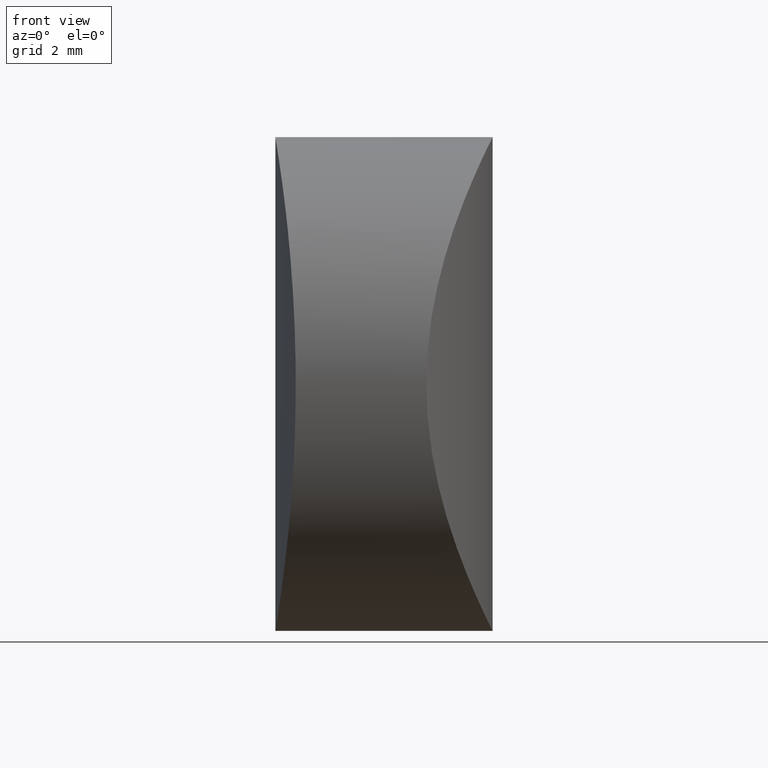
[diagram: clean part render]
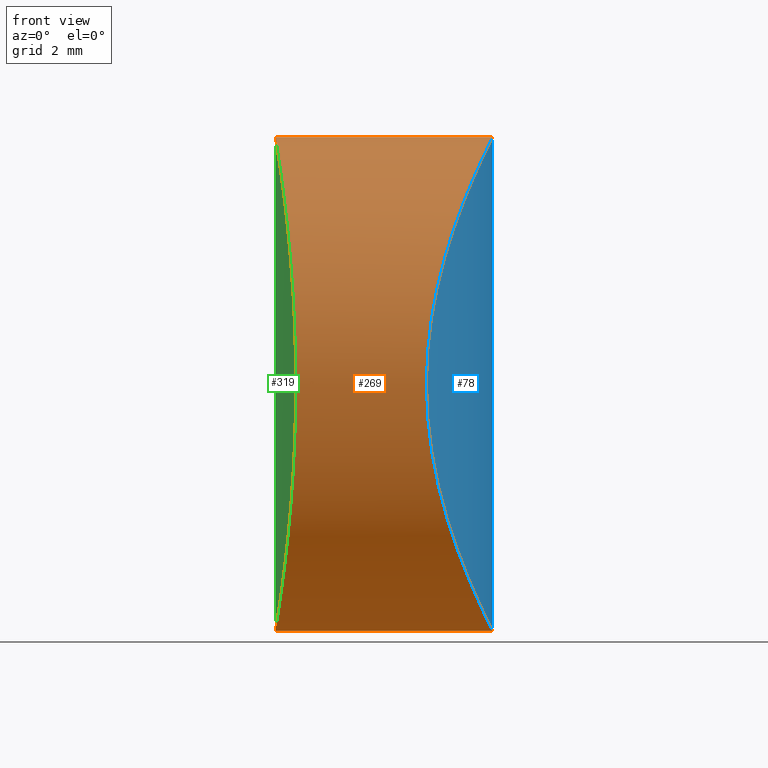
[diagram: same view with three faces highlighted in distinct colors, each labeled with its STEP entity id]
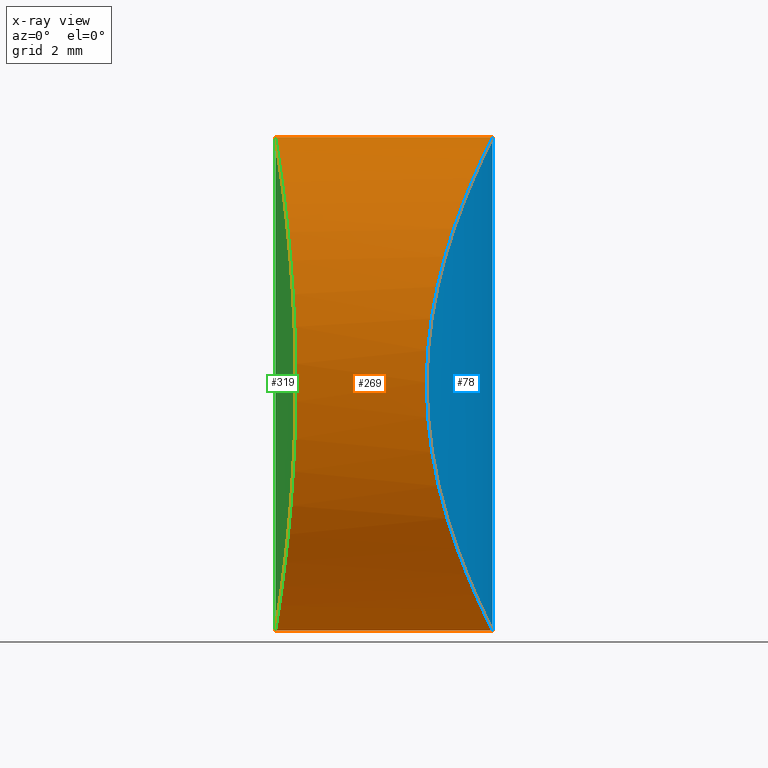
[diagram: x-ray of the same camera — body ghosted, the three highlighted faces saturated]
A machine part, front view with three faces highlighted in distinct colors.
The next image is the same camera in x-ray (body ghosted, the three faces saturated) — at least one of them is partly hidden behind the body in this view.
Their STEP definitions:

[orange] entity #269 — the highlighted cylindrical surface (partial cylindrical patch) has radius 6.25 mm, axis along (-1, 0, 0).
#3 = CARTESIAN_POINT ( 'NONE',  ( 0.4829545343584565886, -6.047693536380923440, 4.619780556301580354 ) ) ;
#5 = VECTOR ( 'NONE', #240, 1000.000000000000000 ) ;
#9 = CARTESIAN_POINT ( 'NONE',  ( 0.08747082248679743932, -2.587088586990906158, 11.94305091952789510 ) ) ;
#11 = CARTESIAN_POINT ( 'NONE',  ( 0.05192445867222306860, -2.023747739799685252, 12.17725649881626815 ) ) ;
#13 = ORIENTED_EDGE ( 'NONE', *, *, #143, .F. ) ;
#18 = CYLINDRICAL_SURFACE ( 'NONE', #256, 6.250000000000000888 ) ;
#19 = CARTESIAN_POINT ( 'NONE',  ( 4.008200150961246599, -5.922098602681358237, 4.210987643511414191 ) ) ;
#21 = EDGE_LOOP ( 'NONE', ( #236, #142, #146, #13 ) ) ;
#25 = VERTEX_POINT ( 'NONE', #86 ) ;
#33 = CARTESIAN_POINT ( 'NONE',  ( 5.299930854168795946, -2.234790816785142464, 0.4096533256334281559 ) ) ;
#34 = CARTESIAN_POINT ( 'NONE',  ( 0.3240684705012928379, -4.964090617211174283, 2.430463122044340007 ) ) ;
#35 = CARTESIAN_POINT ( 'NONE',  ( 0.03274016621498631457, -1.630060715058896381, 12.29773792413894107 ) ) ;
#41 = EDGE_CURVE ( 'NONE', #25, #308, #323, .T. ) ;
#43 = B_SPLINE_CURVE_WITH_KNOTS ( 'NONE', 3,
 ( #290, #55, #108, #84, #198, #174, #104, #197, #172, #217, #141, #171, #315, #85, #196, #268, #270, #139, #244, #293, #343, #341, #218, #56, #288, #52, #19, #316, #245, #83, #291, #342, #199, #61, #113, #298, #92, #33, #327, #64, #167, #214, #336, #44 ),
 .UNSPECIFIED., .F., .F.,
 ( 4, 2, 2, 2, 2, 2, 2, 2, 2, 2, 2, 2, 2, 2, 2, 2, 2, 2, 2, 2, 2, 4 ),
 ( 0.000000000000000000, 0.001242038898820559643, 0.002484077797641119287, 0.003726116696461679364, 0.004347136145871959186, 0.004968155595282238574, 0.005589175044692518829, 0.006210194494102798217, 0.007452233392923358728, 0.008073252842333639850, 0.008694272291743921841, 0.009936311190564482351, 0.01117835008938504460, 0.01242038898820560511, 0.01366242788702616735, 0.01490446678584672786, 0.01552548623525700812, 0.01614650568466729011, 0.01738854458348785062, 0.01800956403289813088, 0.01863058348230840766, 0.01987262238112896817 ),
 .UNSPECIFIED. ) ;
#44 = CARTESIAN_POINT ( 'NONE',  ( 5.499999999999998224, -5.306127916451729366E-15, -8.673617379884035472E-16 ) ) ;
#45 = CARTESIAN_POINT ( 'NONE',  ( 0.4145392146882821982, -5.605848304648271885, 3.478963668593923586 ) ) ;
#52 = CARTESIAN_POINT ( 'NONE',  ( 3.939965554773764200, -6.045220159673069915, 4.610632309698154074 ) ) ;
#55 = CARTESIAN_POINT ( 'NONE',  ( 5.499999999999998224, -0.4204308858565173335, 12.50000000000000000 ) ) ;
#56 = CARTESIAN_POINT ( 'NONE',  ( 3.823735072082887321, -6.250058703357287193, 5.830227390697671375 ) ) ;
#61 = CARTESIAN_POINT ( 'NONE',  ( 4.901988962150182871, -3.821992646196495258, 1.300702827171843490 ) ) ;
#62 = CARTESIAN_POINT ( 'NONE',  ( 12.50000000000000000, -5.306127916451729366E-15, -8.673617379884035472E-16 ) ) ;
#64 = CARTESIAN_POINT ( 'NONE',  ( 5.392645114789305083, -1.646284723063282218, 0.2171595785548926516 ) ) ;
#68 = CARTESIAN_POINT ( 'NONE',  ( 0.5161243098965490050, -6.249983048868624103, 5.836340486397866734 ) ) ;
#72 = CARTESIAN_POINT ( 'NONE',  ( 0.2905979831896557397, -4.705635259058774444, 2.116611540113448431 ) ) ;
#73 = CARTESIAN_POINT ( 'NONE',  ( 1.586780899593034504E-14, 0.000000000000000000, 12.50000000000000000 ) ) ;
#77 = CARTESIAN_POINT ( 'NONE',  ( 0.4898775194626582286, -6.090181329704441815, 7.669049544304755273 ) ) ;
#81 = DIRECTION ( 'NONE',  ( -1.000000000000000000, 0.000000000000000000, 0.000000000000000000 ) ) ;
#82 = B_SPLINE_CURVE_WITH_KNOTS ( 'NONE', 3,
 ( #145, #344, #177, #247, #322, #89, #202, #156, #188, #283, #302, #72, #34, #127, #303, #45, #186, #254, #3, #328, #68, #183, #121, #77, #191, #235, #281, #305, #304, #237, #98, #335, #329, #206, #260, #230, #9, #11, #35, #286, #100, #73 ),
 .UNSPECIFIED., .F., .F.,
 ( 4, 2, 2, 2, 2, 2, 2, 2, 2, 2, 2, 2, 2, 2, 2, 2, 2, 2, 2, 2, 4 ),
 ( 0.02934055191746777133, 0.03056308543687797849, 0.03117435219658308554, 0.03178561895628818912, 0.03300815247569839628, 0.03423068599510861038, 0.03545321951451882447, 0.03606448627422392805, 0.03667575303392903163, 0.03789828655333924573, 0.03912082007274945289, 0.04034335359215966699, 0.04095462035186477057, 0.04156588711156988108, 0.04278842063098010906, 0.04401095415039032316, 0.04523348766980055113, 0.04584475442950565471, 0.04645602118921075829, 0.04767855470862097933, 0.04890108822803120037 ),
 .UNSPECIFIED. ) ;
#83 = CARTESIAN_POINT ( 'NONE',  ( 4.474283165928862438, -4.963069113008143241, 2.429675420315867029 ) ) ;
#84 = CARTESIAN_POINT ( 'NONE',  ( 5.398363331412225463, -1.641239386668569278, 12.29474905259965567 ) ) ;
#85 = CARTESIAN_POINT ( 'NONE',  ( 4.476029905335582093, -4.954742388226770267, 10.06490883469363595 ) ) ;
#86 = CARTESIAN_POINT ( 'NONE',  ( 5.499999999999998224, -5.306127916451729366E-15, -8.673617379884035472E-16 ) ) ;
#89 = CARTESIAN_POINT ( 'NONE',  ( 0.05255592266075759939, -2.010138429213205846, 0.3285170698517857479 ) ) ;
#92 = CARTESIAN_POINT ( 'NONE',  ( 5.188630579431073642, -2.797752453290874630, 0.6463549098473140297 ) ) ;
#98 = CARTESIAN_POINT ( 'NONE',  ( 0.2909473912056529388, -4.708430838582900790, 10.38020545615920298 ) ) ;
#99 = VERTEX_POINT ( 'NONE', #251 ) ;
#100 = CARTESIAN_POINT ( 'NONE',  ( 1.586031547824911193E-14, -0.4134255790408547515, 12.50000000000000000 ) ) ;
#104 = CARTESIAN_POINT ( 'NONE',  ( 5.100579253738445118, -3.152975419826748116, 11.66168854718472758 ) ) ;
#105 = CARTESIAN_POINT ( 'NONE',  ( 12.50000000000000000, -6.071532165918824830E-15, 6.249999999999999112 ) ) ;
#108 = CARTESIAN_POINT ( 'NONE',  ( 5.478843911536270816, -0.8325528602893852437, 12.45802010048942066 ) ) ;
#110 = VERTEX_POINT ( 'NONE', #297 ) ;
#113 = CARTESIAN_POINT ( 'NONE',  ( 4.953513515990866978, -3.658322438160693135, 1.178476096167993425 ) ) ;
#121 = CARTESIAN_POINT ( 'NONE',  ( 0.5093144359310182168, -6.209415861584857588, 7.069570380984205649 ) ) ;
#127 = CARTESIAN_POINT ( 'NONE',  ( 0.3712204625318041296, -5.306834674025101783, 2.942108655494897640 ) ) ;
#131 = VECTOR ( 'NONE', #295, 1000.000000000000000 ) ;
#136 = FACE_OUTER_BOUND ( 'NONE', #21, .T. ) ;
#139 = CARTESIAN_POINT ( 'NONE',  ( 4.050235299533595068, -5.841329982157812850, 8.482153146949745093 ) ) ;
#141 = CARTESIAN_POINT ( 'NONE',  ( 4.744262744214226224, -4.281363646961209746, 10.80769014190529020 ) ) ;
#142 = ORIENTED_EDGE ( 'NONE', *, *, #313, .F. ) ;
#143 = EDGE_CURVE ( 'NONE', #308, #99, #82, .T. ) ;
#145 = CARTESIAN_POINT ( 'NONE',  ( 1.136498184832648444E-14, 1.068157224305689298E-31, -9.773172231851168020E-16 ) ) ;
#146 = ORIENTED_EDGE ( 'NONE', *, *, #223, .T. ) ;
#156 = CARTESIAN_POINT ( 'NONE',  ( 0.09910965749200047192, -2.772338036541226902, 0.6335787937697300309 ) ) ;
#167 = CARTESIAN_POINT ( 'NONE',  ( 5.417967346490923042, -1.443662297825266450, 0.1654839249916210675 ) ) ;
#171 = CARTESIAN_POINT ( 'NONE',  ( 4.637096022221840030, -4.564387682680785652, 10.52422264152600739 ) ) ;
#172 = CARTESIAN_POINT ( 'NONE',  ( 4.901961221584501871, -3.822074769951113282, 11.19922885566637483 ) ) ;
#174 = CARTESIAN_POINT ( 'NONE',  ( 5.189010716184532690, -2.796367035738801743, 11.85448339080179636 ) ) ;
#177 = CARTESIAN_POINT ( 'NONE',  ( 0.006721944021467518397, -0.8197799263718866802, 0.04061279894280638708 ) ) ;
#183 = CARTESIAN_POINT ( 'NONE',  ( 0.5161299459178037008, -6.250016940629667950, 6.663147124134831678 ) ) ;
#186 = CARTESIAN_POINT ( 'NONE',  ( 0.4276525441191665888, -5.693019792750925845, 3.662844268231694844 ) ) ;
#188 = CARTESIAN_POINT ( 'NONE',  ( 0.1273308529158439506, -3.130891926397191050, 0.8253851232295433826 ) ) ;
#191 = CARTESIAN_POINT ( 'NONE',  ( 0.4818622700615983190, -6.040641502459362933, 7.867179406013312004 ) ) ;
#196 = CARTESIAN_POINT ( 'NONE',  ( 4.422545947120804399, -5.076343834273187916, 9.901598556827257980 ) ) ;
#197 = CARTESIAN_POINT ( 'NONE',  ( 4.953423948601600735, -3.658625364287904524, 11.32131562577506756 ) ) ;
#198 = CARTESIAN_POINT ( 'NONE',  ( 5.337968765651573300, -2.041851301300707355, 12.17121152634462256 ) ) ;
#199 = CARTESIAN_POINT ( 'NONE',  ( 4.797469905077365482, -4.133108092026791525, 1.557390087364225018 ) ) ;
#202 = CARTESIAN_POINT ( 'NONE',  ( 0.06339900910544064849, -2.205190765562244248, 0.3983745825505354277 ) ) ;
#206 = CARTESIAN_POINT ( 'NONE',  ( 0.1434824269873183344, -3.307886042671819293, 11.55683867362974482 ) ) ;
#214 = CARTESIAN_POINT ( 'NONE',  ( 5.478819348541660084, -0.8339676614958809742, 0.04202249292340250880 ) ) ;
#217 = CARTESIAN_POINT ( 'NONE',  ( 4.797504594718321691, -4.133005283357483073, 10.94269529594631685 ) ) ;
#218 = CARTESIAN_POINT ( 'NONE',  ( 3.823802999769077005, -6.249941174666603594, 6.671518863326060256 ) ) ;
#223 = EDGE_CURVE ( 'NONE', #110, #99, #271, .T. ) ;
#230 = CARTESIAN_POINT ( 'NONE',  ( 0.1004707187619851283, -2.770985683892317919, 11.85587395494219898 ) ) ;
#235 = CARTESIAN_POINT ( 'NONE',  ( 0.4629301586406475155, -5.921537788994333695, 8.259977414296034937 ) ) ;
#236 = ORIENTED_EDGE ( 'NONE', *, *, #41, .F. ) ;
#237 = CARTESIAN_POINT ( 'NONE',  ( 0.3250769054402188885, -4.971666286081013020, 10.05939303532884921 ) ) ;
#240 = DIRECTION ( 'NONE',  ( -1.000000000000000000, 0.000000000000000000, 0.000000000000000000 ) ) ;
#244 = CARTESIAN_POINT ( 'NONE',  ( 4.012820659232075649, -5.911247298030509079, 8.290173178237724372 ) ) ;
#245 = CARTESIAN_POINT ( 'NONE',  ( 4.267814276648419280, -5.415114148527844229, 3.103021501019150641 ) ) ;
#247 = CARTESIAN_POINT ( 'NONE',  ( 0.02591766193876681584, -1.419232947397066846, 0.1598616619894049629 ) ) ;
#251 = CARTESIAN_POINT ( 'NONE',  ( 1.586780899593034504E-14, 0.000000000000000000, 12.50000000000000000 ) ) ;
#254 = CARTESIAN_POINT ( 'NONE',  ( 0.4635404774375572745, -5.927213797019767583, 4.226134103079007609 ) ) ;
#256 = AXIS2_PLACEMENT_3D ( 'NONE', #105, #81, #339 ) ;
#260 = CARTESIAN_POINT ( 'NONE',  ( 0.1284342911476158700, -3.130939934637391620, 11.66307672075024549 ) ) ;
#268 = CARTESIAN_POINT ( 'NONE',  ( 4.268015616409087443, -5.414671851212665032, 9.397631445965433983 ) ) ;
#269 = ADVANCED_FACE ( 'NONE', ( #136 ), #18, .T. ) ;
#270 = CARTESIAN_POINT ( 'NONE',  ( 4.172729123313529520, -5.605792025897776476, 9.043236525959510885 ) ) ;
#271 = LINE ( 'NONE', #317, #5 ) ;
#281 = CARTESIAN_POINT ( 'NONE',  ( 0.4519710260602098906, -5.851683952539731060, 8.455035812689571273 ) ) ;
#283 = CARTESIAN_POINT ( 'NONE',  ( 0.1893961728959121238, -3.809488662938500081, 1.278408007187083140 ) ) ;
#286 = CARTESIAN_POINT ( 'NONE',  ( 0.006726049494030160100, -0.8221003098062018566, 12.45937863352390451 ) ) ;
#288 = CARTESIAN_POINT ( 'NONE',  ( 3.848281652511907236, -6.208098310133504327, 5.418297784876791034 ) ) ;
#290 = CARTESIAN_POINT ( 'NONE',  ( 5.499999999999998224, -6.071532165918824830E-15, 12.50000000000000000 ) ) ;
#291 = CARTESIAN_POINT ( 'NONE',  ( 4.583465705276889679, -4.706014185487407353, 2.117642485836710442 ) ) ;
#292 = CARTESIAN_POINT ( 'NONE',  ( 1.136498184832648444E-14, 1.068157224305689298E-31, -9.773172231851168020E-16 ) ) ;
#293 = CARTESIAN_POINT ( 'NONE',  ( 3.946516896790673634, -6.033034497158894283, 7.895492622822828821 ) ) ;
#295 = DIRECTION ( 'NONE',  ( -1.000000000000000000, 0.000000000000000000, 0.000000000000000000 ) ) ;
#297 = CARTESIAN_POINT ( 'NONE',  ( 5.499999999999998224, -6.071532165918824830E-15, 12.50000000000000000 ) ) ;
#298 = CARTESIAN_POINT ( 'NONE',  ( 5.100480944358887214, -3.153303538659017580, 0.8385410592116590012 ) ) ;
#302 = CARTESIAN_POINT ( 'NONE',  ( 0.2234293246524687027, -4.130287875618686932, 1.541643023714352356 ) ) ;
#303 = CARTESIAN_POINT ( 'NONE',  ( 0.3863655932238942436, -5.413064718625544280, 3.119040415995174342 ) ) ;
#304 = CARTESIAN_POINT ( 'NONE',  ( 0.3874684614509883440, -5.424688508477384374, 9.380765967580448006 ) ) ;
#305 = CARTESIAN_POINT ( 'NONE',  ( 0.4159157410758312912, -5.616489684704372820, 9.022200512990993460 ) ) ;
#308 = VERTEX_POINT ( 'NONE', #292 ) ;
#313 = EDGE_CURVE ( 'NONE', #110, #25, #43, .T. ) ;
#315 = CARTESIAN_POINT ( 'NONE',  ( 4.583167940201298585, -4.699052856867841577, 10.37576099635896121 ) ) ;
#316 = CARTESIAN_POINT ( 'NONE',  ( 4.172178724081542001, -5.606908644890324034, 3.458692296136483435 ) ) ;
#317 = CARTESIAN_POINT ( 'NONE',  ( 12.50000000000000000, -6.071532165918824830E-15, 12.50000000000000000 ) ) ;
#322 = CARTESIAN_POINT ( 'NONE',  ( 0.03383628064533664853, -1.617354943771920794, 0.2094056929393993405 ) ) ;
#323 = LINE ( 'NONE', #62, #131 ) ;
#327 = CARTESIAN_POINT ( 'NONE',  ( 5.333543247772078999, -2.042164353938784149, 0.3394178212704527797 ) ) ;
#328 = CARTESIAN_POINT ( 'NONE',  ( 0.5093005127096844609, -6.209349300076315359, 5.427689952488861103 ) ) ;
#329 = CARTESIAN_POINT ( 'NONE',  ( 0.1903945330906904598, -3.819575723843630755, 11.21406369890288701 ) ) ;
#335 = CARTESIAN_POINT ( 'NONE',  ( 0.2237751282031887057, -4.133445245479578034, 10.95558694260641452 ) ) ;
#336 = CARTESIAN_POINT ( 'NONE',  ( 5.499999999999999112, -0.4202502510817995862, -9.228894534195187478E-16 ) ) ;
#339 = DIRECTION ( 'NONE',  ( 0.000000000000000000, 0.000000000000000000, 1.000000000000000000 ) ) ;
#341 = CARTESIAN_POINT ( 'NONE',  ( 3.848424530652488684, -6.207861446666275818, 7.084501827366790572 ) ) ;
#342 = CARTESIAN_POINT ( 'NONE',  ( 4.744212298873339506, -4.281501630418621751, 1.692439707097627366 ) ) ;
#343 = CARTESIAN_POINT ( 'NONE',  ( 3.917788844864511066, -6.084608863991484817, 7.693223555952894976 ) ) ;
#344 = CARTESIAN_POINT ( 'NONE',  ( 1.136728803127111734E-14, -0.4134111996259767219, -1.372193374551966549E-15 ) ) ;

[blue] entity #78 — the highlighted cylindrical surface (partial cylindrical patch) has radius 12.49 mm, axis along (-0, -0, -1).
#4 = CARTESIAN_POINT ( 'NONE',  ( 4.172729123313466459, 5.605792025897764042, 3.456763474040483342 ) ) ;
#7 = CARTESIAN_POINT ( 'NONE',  ( 3.848281652511831297, 6.208098310133491005, 7.081702215123205413 ) ) ;
#16 = CARTESIAN_POINT ( 'NONE',  ( 5.333543247772056795, 2.042164353938774823, 12.16058217872954650 ) ) ;
#19 = CARTESIAN_POINT ( 'NONE',  ( 4.008200150961246599, -5.922098602681358237, 4.210987643511414191 ) ) ;
#20 = CARTESIAN_POINT ( 'NONE',  ( 5.499999999999998224, -6.071532165918824830E-15, 12.50000000000000000 ) ) ;
#25 = VERTEX_POINT ( 'NONE', #86 ) ;
#30 = FACE_OUTER_BOUND ( 'NONE', #57, .T. ) ;
#31 = DIRECTION ( 'NONE',  ( -1.000000000000000000, 0.000000000000000000, 0.000000000000000000 ) ) ;
#33 = CARTESIAN_POINT ( 'NONE',  ( 5.299930854168795946, -2.234790816785142464, 0.4096533256334281559 ) ) ;
#38 = CARTESIAN_POINT ( 'NONE',  ( 4.012820659232004594, 5.911247298030493980, 4.209826821762267635 ) ) ;
#42 = CARTESIAN_POINT ( 'NONE',  ( 4.744212298873294209, 4.281501630418608428, 10.80756029290237308 ) ) ;
#43 = B_SPLINE_CURVE_WITH_KNOTS ( 'NONE', 3,
 ( #290, #55, #108, #84, #198, #174, #104, #197, #172, #217, #141, #171, #315, #85, #196, #268, #270, #139, #244, #293, #343, #341, #218, #56, #288, #52, #19, #316, #245, #83, #291, #342, #199, #61, #113, #298, #92, #33, #327, #64, #167, #214, #336, #44 ),
 .UNSPECIFIED., .F., .F.,
 ( 4, 2, 2, 2, 2, 2, 2, 2, 2, 2, 2, 2, 2, 2, 2, 2, 2, 2, 2, 2, 2, 4 ),
 ( 0.000000000000000000, 0.001242038898820559643, 0.002484077797641119287, 0.003726116696461679364, 0.004347136145871959186, 0.004968155595282238574, 0.005589175044692518829, 0.006210194494102798217, 0.007452233392923358728, 0.008073252842333639850, 0.008694272291743921841, 0.009936311190564482351, 0.01117835008938504460, 0.01242038898820560511, 0.01366242788702616735, 0.01490446678584672786, 0.01552548623525700812, 0.01614650568466729011, 0.01738854458348785062, 0.01800956403289813088, 0.01863058348230840766, 0.01987262238112896817 ),
 .UNSPECIFIED. ) ;
#44 = CARTESIAN_POINT ( 'NONE',  ( 5.499999999999998224, -5.306127916451729366E-15, -8.673617379884035472E-16 ) ) ;
#46 = CARTESIAN_POINT ( 'NONE',  ( 3.823802999769002398, 6.249941174666591159, 5.828481136673940632 ) ) ;
#48 = CARTESIAN_POINT ( 'NONE',  ( 5.499999999999997335, 0.4204308858565055651, -8.156927282058909307E-16 ) ) ;
#52 = CARTESIAN_POINT ( 'NONE',  ( 3.939965554773764200, -6.045220159673069915, 4.610632309698154074 ) ) ;
#54 = CARTESIAN_POINT ( 'NONE',  ( 5.188630579431041667, 2.797752453290867081, 11.85364509015268375 ) ) ;
#55 = CARTESIAN_POINT ( 'NONE',  ( 5.499999999999998224, -0.4204308858565173335, 12.50000000000000000 ) ) ;
#56 = CARTESIAN_POINT ( 'NONE',  ( 3.823735072082887321, -6.250058703357287193, 5.830227390697671375 ) ) ;
#57 = EDGE_LOOP ( 'NONE', ( #234, #332 ) ) ;
#61 = CARTESIAN_POINT ( 'NONE',  ( 4.901988962150182871, -3.821992646196495258, 1.300702827171843490 ) ) ;
#64 = CARTESIAN_POINT ( 'NONE',  ( 5.392645114789305083, -1.646284723063282218, 0.2171595785548926516 ) ) ;
#66 = CARTESIAN_POINT ( 'NONE',  ( 5.189010716184502492, 2.796367035738788864, 0.6455166091982036392 ) ) ;
#69 = CARTESIAN_POINT ( 'NONE',  ( 5.398363331412208588, 1.641239386668556843, 0.2052509474003404166 ) ) ;
#75 = CARTESIAN_POINT ( 'NONE',  ( 4.422545947120749332, 5.076343834273174593, 2.598401443172736247 ) ) ;
#78 = ADVANCED_FACE ( 'NONE', ( #30 ), #149, .T. ) ;
#79 = CARTESIAN_POINT ( 'NONE',  ( 5.299930854168772854, 2.234790816785134027, 12.09034667436657351 ) ) ;
#83 = CARTESIAN_POINT ( 'NONE',  ( 4.474283165928862438, -4.963069113008143241, 2.429675420315867029 ) ) ;
#84 = CARTESIAN_POINT ( 'NONE',  ( 5.398363331412225463, -1.641239386668569278, 12.29474905259965567 ) ) ;
#85 = CARTESIAN_POINT ( 'NONE',  ( 4.476029905335582093, -4.954742388226770267, 10.06490883469363595 ) ) ;
#86 = CARTESIAN_POINT ( 'NONE',  ( 5.499999999999998224, -5.306127916451729366E-15, -8.673617379884035472E-16 ) ) ;
#92 = CARTESIAN_POINT ( 'NONE',  ( 5.188630579431073642, -2.797752453290874630, 0.6463549098473140297 ) ) ;
#96 = CARTESIAN_POINT ( 'NONE',  ( 4.172178724081478052, 5.606908644890310711, 9.041307703863516565 ) ) ;
#104 = CARTESIAN_POINT ( 'NONE',  ( 5.100579253738445118, -3.152975419826748116, 11.66168854718472758 ) ) ;
#108 = CARTESIAN_POINT ( 'NONE',  ( 5.478843911536270816, -0.8325528602893852437, 12.45802010048942066 ) ) ;
#110 = VERTEX_POINT ( 'NONE', #297 ) ;
#113 = CARTESIAN_POINT ( 'NONE',  ( 4.953513515990866978, -3.658322438160693135, 1.178476096167993425 ) ) ;
#124 = CARTESIAN_POINT ( 'NONE',  ( 5.337968765651553760, 2.041851301300694477, 0.3287884736553775000 ) ) ;
#128 = CARTESIAN_POINT ( 'NONE',  ( 4.476029905335527026, 4.954742388226756056, 2.435091165306355165 ) ) ;
#130 = CARTESIAN_POINT ( 'NONE',  ( 4.268015616409025270, 5.414671851212649045, 3.102368554034560688 ) ) ;
#134 = CARTESIAN_POINT ( 'NONE',  ( 5.417967346490907943, 1.443662297825257790, 12.33451607500837888 ) ) ;
#139 = CARTESIAN_POINT ( 'NONE',  ( 4.050235299533595068, -5.841329982157812850, 8.482153146949745093 ) ) ;
#141 = CARTESIAN_POINT ( 'NONE',  ( 4.744262744214226224, -4.281363646961209746, 10.80769014190529020 ) ) ;
#149 = CYLINDRICAL_SURFACE ( 'NONE', #310, 12.49000000000000199 ) ;
#157 = CARTESIAN_POINT ( 'NONE',  ( 5.100579253738413144, 3.152975419826734793, 0.8383114528152735279 ) ) ;
#160 = CARTESIAN_POINT ( 'NONE',  ( 3.946516896790600804, 6.033034497158880072, 4.604507377177165850 ) ) ;
#161 = CARTESIAN_POINT ( 'NONE',  ( 4.797469905077320185, 4.133108092026782643, 10.94260991263577232 ) ) ;
#162 = CARTESIAN_POINT ( 'NONE',  ( 4.267814276648357996, 5.415114148527830906, 9.396978498980850247 ) ) ;
#165 = CARTESIAN_POINT ( 'NONE',  ( 5.392645114789288208, 1.646284723063273114, 12.28284042144510835 ) ) ;
#167 = CARTESIAN_POINT ( 'NONE',  ( 5.417967346490923042, -1.443662297825266450, 0.1654839249916210675 ) ) ;
#169 = CARTESIAN_POINT ( 'NONE',  ( 5.478819348541651202, 0.8339676614958736467, 12.45797750707659546 ) ) ;
#171 = CARTESIAN_POINT ( 'NONE',  ( 4.637096022221840030, -4.564387682680785652, 10.52422264152600739 ) ) ;
#172 = CARTESIAN_POINT ( 'NONE',  ( 4.901961221584501871, -3.822074769951113282, 11.19922885566637483 ) ) ;
#174 = CARTESIAN_POINT ( 'NONE',  ( 5.189010716184532690, -2.796367035738801743, 11.85448339080179636 ) ) ;
#184 = CARTESIAN_POINT ( 'NONE',  ( 4.050235299533525790, 5.841329982157798639, 4.017846853050253131 ) ) ;
#187 = CARTESIAN_POINT ( 'NONE',  ( 4.474283165928804706, 4.963069113008130806, 10.07032457968412942 ) ) ;
#189 = CARTESIAN_POINT ( 'NONE',  ( 3.917788844864439124, 6.084608863991471495, 4.806776444047099695 ) ) ;
#196 = CARTESIAN_POINT ( 'NONE',  ( 4.422545947120804399, -5.076343834273187916, 9.901598556827257980 ) ) ;
#197 = CARTESIAN_POINT ( 'NONE',  ( 4.953423948601600735, -3.658625364287904524, 11.32131562577506756 ) ) ;
#198 = CARTESIAN_POINT ( 'NONE',  ( 5.337968765651573300, -2.041851301300707355, 12.17121152634462256 ) ) ;
#199 = CARTESIAN_POINT ( 'NONE',  ( 4.797469905077365482, -4.133108092026791525, 1.557390087364225018 ) ) ;
#201 = DIRECTION ( 'NONE',  ( -0.000000000000000000, -0.000000000000000000, -1.000000000000000000 ) ) ;
#208 = CARTESIAN_POINT ( 'NONE',  ( 4.583167940201247070, 4.699052856867828254, 2.124239003641036572 ) ) ;
#209 = CARTESIAN_POINT ( 'NONE',  ( 4.637096022221792069, 4.564387682680769665, 1.975777358473987277 ) ) ;
#211 = CARTESIAN_POINT ( 'NONE',  ( 4.901961221584459238, 3.822074769951095963, 1.300771144333626506 ) ) ;
#213 = EDGE_CURVE ( 'NONE', #25, #110, #224, .T. ) ;
#214 = CARTESIAN_POINT ( 'NONE',  ( 5.478819348541660084, -0.8339676614958809742, 0.04202249292340250880 ) ) ;
#217 = CARTESIAN_POINT ( 'NONE',  ( 4.797504594718321691, -4.133005283357483073, 10.94269529594631685 ) ) ;
#218 = CARTESIAN_POINT ( 'NONE',  ( 3.823802999769077005, -6.249941174666603594, 6.671518863326060256 ) ) ;
#224 = B_SPLINE_CURVE_WITH_KNOTS ( 'NONE', 3,
 ( #307, #48, #280, #69, #124, #66, #157, #333, #211, #255, #309, #209, #208, #128, #75, #130, #4, #184, #38, #160, #189, #284, #46, #258, #7, #232, #330, #96, #162, #187, #282, #42, #161, #261, #312, #289, #54, #79, #16, #165, #134, #169, #243, #20 ),
 .UNSPECIFIED., .F., .F.,
 ( 4, 2, 2, 2, 2, 2, 2, 2, 2, 2, 2, 2, 2, 2, 2, 2, 2, 2, 2, 2, 2, 4 ),
 ( -0.01988116416464391287, -0.01863859140435366463, -0.01739601864406341292, -0.01615344588377316468, -0.01553215950362804056, -0.01491087312348291644, -0.01428958674333779405, -0.01366830036319266993, -0.01242572760290242342, -0.01180444122275729930, -0.01118315484261217692, -0.009940582082321932147, -0.008698009322031687376, -0.007455436561741446075, -0.006212863801451201304, -0.004970291041160958267, -0.004349004661015837617, -0.003727718280870716966, -0.002485145520580479134, -0.001863859140435356748, -0.001242572760290237832, 0.000000000000000000 ),
 .UNSPECIFIED. ) ;
#232 = CARTESIAN_POINT ( 'NONE',  ( 3.939965554773691370, 6.045220159673055704, 7.889367690301843261 ) ) ;
#234 = ORIENTED_EDGE ( 'NONE', *, *, #313, .T. ) ;
#243 = CARTESIAN_POINT ( 'NONE',  ( 5.499999999999996447, 0.4206115982728710345, 12.50000000000000000 ) ) ;
#244 = CARTESIAN_POINT ( 'NONE',  ( 4.012820659232075649, -5.911247298030509079, 8.290173178237724372 ) ) ;
#245 = CARTESIAN_POINT ( 'NONE',  ( 4.267814276648419280, -5.415114148527844229, 3.103021501019150641 ) ) ;
#255 = CARTESIAN_POINT ( 'NONE',  ( 4.797504594718278170, 4.133005283357464421, 1.557304704053683597 ) ) ;
#258 = CARTESIAN_POINT ( 'NONE',  ( 3.823735072082811381, 6.250058703357273870, 6.669772609302327737 ) ) ;
#261 = CARTESIAN_POINT ( 'NONE',  ( 4.901988962150140239, 3.821992646196489041, 11.19929717282815851 ) ) ;
#268 = CARTESIAN_POINT ( 'NONE',  ( 4.268015616409087443, -5.414671851212665032, 9.397631445965433983 ) ) ;
#270 = CARTESIAN_POINT ( 'NONE',  ( 4.172729123313529520, -5.605792025897776476, 9.043236525959510885 ) ) ;
#280 = CARTESIAN_POINT ( 'NONE',  ( 5.478843911536261935, 0.8325528602893739194, 0.04197989951058110625 ) ) ;
#282 = CARTESIAN_POINT ( 'NONE',  ( 4.583465705276839053, 4.706014185487394030, 10.38235751416328867 ) ) ;
#284 = CARTESIAN_POINT ( 'NONE',  ( 3.848424530652415410, 6.207861446666264271, 5.415498172633206764 ) ) ;
#288 = CARTESIAN_POINT ( 'NONE',  ( 3.848281652511907236, -6.208098310133504327, 5.418297784876791034 ) ) ;
#289 = CARTESIAN_POINT ( 'NONE',  ( 5.100480944358852575, 3.153303538659008698, 11.66145894078833756 ) ) ;
#290 = CARTESIAN_POINT ( 'NONE',  ( 5.499999999999998224, -6.071532165918824830E-15, 12.50000000000000000 ) ) ;
#291 = CARTESIAN_POINT ( 'NONE',  ( 4.583465705276889679, -4.706014185487407353, 2.117642485836710442 ) ) ;
#293 = CARTESIAN_POINT ( 'NONE',  ( 3.946516896790673634, -6.033034497158894283, 7.895492622822828821 ) ) ;
#297 = CARTESIAN_POINT ( 'NONE',  ( 5.499999999999998224, -6.071532165918824830E-15, 12.50000000000000000 ) ) ;
#298 = CARTESIAN_POINT ( 'NONE',  ( 5.100480944358887214, -3.153303538659017580, 0.8385410592116590012 ) ) ;
#307 = CARTESIAN_POINT ( 'NONE',  ( 5.499999999999998224, -5.306127916451729366E-15, -8.673617379884035472E-16 ) ) ;
#309 = CARTESIAN_POINT ( 'NONE',  ( 4.744262744214180039, 4.281363646961192870, 1.692309858094708463 ) ) ;
#310 = AXIS2_PLACEMENT_3D ( 'NONE', #324, #201, #31 ) ;
#312 = CARTESIAN_POINT ( 'NONE',  ( 4.953513515990831451, 3.658322438160683365, 11.32152390383200569 ) ) ;
#313 = EDGE_CURVE ( 'NONE', #110, #25, #43, .T. ) ;
#315 = CARTESIAN_POINT ( 'NONE',  ( 4.583167940201298585, -4.699052856867841577, 10.37576099635896121 ) ) ;
#316 = CARTESIAN_POINT ( 'NONE',  ( 4.172178724081542001, -5.606908644890324034, 3.458692296136483435 ) ) ;
#324 = CARTESIAN_POINT ( 'NONE',  ( -6.990000000000002878, -7.069043529374072971E-14, 12.50000000000000000 ) ) ;
#327 = CARTESIAN_POINT ( 'NONE',  ( 5.333543247772078999, -2.042164353938784149, 0.3394178212704527797 ) ) ;
#330 = CARTESIAN_POINT ( 'NONE',  ( 4.008200150961177322, 5.922098602681347579, 8.289012356488584032 ) ) ;
#332 = ORIENTED_EDGE ( 'NONE', *, *, #213, .T. ) ;
#333 = CARTESIAN_POINT ( 'NONE',  ( 4.953423948601561655, 3.658625364287889870, 1.178684374224931775 ) ) ;
#336 = CARTESIAN_POINT ( 'NONE',  ( 5.499999999999999112, -0.4202502510817995862, -9.228894534195187478E-16 ) ) ;
#341 = CARTESIAN_POINT ( 'NONE',  ( 3.848424530652488684, -6.207861446666275818, 7.084501827366790572 ) ) ;
#342 = CARTESIAN_POINT ( 'NONE',  ( 4.744212298873339506, -4.281501630418621751, 1.692439707097627366 ) ) ;
#343 = CARTESIAN_POINT ( 'NONE',  ( 3.917788844864511066, -6.084608863991484817, 7.693223555952894976 ) ) ;

[green] entity #319 — the highlighted cylindrical surface (partial cylindrical patch) has radius 38.1 mm, axis along (-0, -0, -1).
#3 = CARTESIAN_POINT ( 'NONE',  ( 0.4829545343584565886, -6.047693536380923440, 4.619780556301580354 ) ) ;
#9 = CARTESIAN_POINT ( 'NONE',  ( 0.08747082248679743932, -2.587088586990906158, 11.94305091952789510 ) ) ;
#11 = CARTESIAN_POINT ( 'NONE',  ( 0.05192445867222306860, -2.023747739799685252, 12.17725649881626815 ) ) ;
#29 = EDGE_LOOP ( 'NONE', ( #272, #221 ) ) ;
#34 = CARTESIAN_POINT ( 'NONE',  ( 0.3240684705012928379, -4.964090617211174283, 2.430463122044340007 ) ) ;
#35 = CARTESIAN_POINT ( 'NONE',  ( 0.03274016621498631457, -1.630060715058896381, 12.29773792413894107 ) ) ;
#45 = CARTESIAN_POINT ( 'NONE',  ( 0.4145392146882821982, -5.605848304648271885, 3.478963668593923586 ) ) ;
#47 = CYLINDRICAL_SURFACE ( 'NONE', #320, 38.09999999999998721 ) ;
#68 = CARTESIAN_POINT ( 'NONE',  ( 0.5161243098965490050, -6.249983048868624103, 5.836340486397866734 ) ) ;
#71 = FACE_OUTER_BOUND ( 'NONE', #29, .T. ) ;
#72 = CARTESIAN_POINT ( 'NONE',  ( 0.2905979831896557397, -4.705635259058774444, 2.116611540113448431 ) ) ;
#73 = CARTESIAN_POINT ( 'NONE',  ( 1.586780899593034504E-14, 0.000000000000000000, 12.50000000000000000 ) ) ;
#76 = DIRECTION ( 'NONE',  ( -0.000000000000000000, -0.000000000000000000, -1.000000000000000000 ) ) ;
#77 = CARTESIAN_POINT ( 'NONE',  ( 0.4898775194626582286, -6.090181329704441815, 7.669049544304755273 ) ) ;
#82 = B_SPLINE_CURVE_WITH_KNOTS ( 'NONE', 3,
 ( #145, #344, #177, #247, #322, #89, #202, #156, #188, #283, #302, #72, #34, #127, #303, #45, #186, #254, #3, #328, #68, #183, #121, #77, #191, #235, #281, #305, #304, #237, #98, #335, #329, #206, #260, #230, #9, #11, #35, #286, #100, #73 ),
 .UNSPECIFIED., .F., .F.,
 ( 4, 2, 2, 2, 2, 2, 2, 2, 2, 2, 2, 2, 2, 2, 2, 2, 2, 2, 2, 2, 4 ),
 ( 0.02934055191746777133, 0.03056308543687797849, 0.03117435219658308554, 0.03178561895628818912, 0.03300815247569839628, 0.03423068599510861038, 0.03545321951451882447, 0.03606448627422392805, 0.03667575303392903163, 0.03789828655333924573, 0.03912082007274945289, 0.04034335359215966699, 0.04095462035186477057, 0.04156588711156988108, 0.04278842063098010906, 0.04401095415039032316, 0.04523348766980055113, 0.04584475442950565471, 0.04645602118921075829, 0.04767855470862097933, 0.04890108822803120037 ),
 .UNSPECIFIED. ) ;
#89 = CARTESIAN_POINT ( 'NONE',  ( 0.05255592266075759939, -2.010138429213205846, 0.3285170698517857479 ) ) ;
#98 = CARTESIAN_POINT ( 'NONE',  ( 0.2909473912056529388, -4.708430838582900790, 10.38020545615920298 ) ) ;
#99 = VERTEX_POINT ( 'NONE', #251 ) ;
#100 = CARTESIAN_POINT ( 'NONE',  ( 1.586031547824911193E-14, -0.4134255790408547515, 12.50000000000000000 ) ) ;
#121 = CARTESIAN_POINT ( 'NONE',  ( 0.5093144359310182168, -6.209415861584857588, 7.069570380984205649 ) ) ;
#127 = CARTESIAN_POINT ( 'NONE',  ( 0.3712204625318041296, -5.306834674025101783, 2.942108655494897640 ) ) ;
#143 = EDGE_CURVE ( 'NONE', #308, #99, #82, .T. ) ;
#145 = CARTESIAN_POINT ( 'NONE',  ( 1.136498184832648444E-14, 1.068157224305689298E-31, -9.773172231851168020E-16 ) ) ;
#156 = CARTESIAN_POINT ( 'NONE',  ( 0.09910965749200047192, -2.772338036541226902, 0.6335787937697300309 ) ) ;
#176 = VECTOR ( 'NONE', #337, 1000.000000000000000 ) ;
#177 = CARTESIAN_POINT ( 'NONE',  ( 0.006721944021467518397, -0.8197799263718866802, 0.04061279894280638708 ) ) ;
#183 = CARTESIAN_POINT ( 'NONE',  ( 0.5161299459178037008, -6.250016940629667950, 6.663147124134831678 ) ) ;
#186 = CARTESIAN_POINT ( 'NONE',  ( 0.4276525441191665888, -5.693019792750925845, 3.662844268231694844 ) ) ;
#188 = CARTESIAN_POINT ( 'NONE',  ( 0.1273308529158439506, -3.130891926397191050, 0.8253851232295433826 ) ) ;
#191 = CARTESIAN_POINT ( 'NONE',  ( 0.4818622700615983190, -6.040641502459362933, 7.867179406013312004 ) ) ;
#194 = CARTESIAN_POINT ( 'NONE',  ( 38.10000000000000142, 0.000000000000000000, 12.50000000000000000 ) ) ;
#202 = CARTESIAN_POINT ( 'NONE',  ( 0.06339900910544064849, -2.205190765562244248, 0.3983745825505354277 ) ) ;
#206 = CARTESIAN_POINT ( 'NONE',  ( 0.1434824269873183344, -3.307886042671819293, 11.55683867362974482 ) ) ;
#221 = ORIENTED_EDGE ( 'NONE', *, *, #294, .T. ) ;
#230 = CARTESIAN_POINT ( 'NONE',  ( 0.1004707187619851283, -2.770985683892317919, 11.85587395494219898 ) ) ;
#235 = CARTESIAN_POINT ( 'NONE',  ( 0.4629301586406475155, -5.921537788994333695, 8.259977414296034937 ) ) ;
#237 = CARTESIAN_POINT ( 'NONE',  ( 0.3250769054402188885, -4.971666286081013020, 10.05939303532884921 ) ) ;
#247 = CARTESIAN_POINT ( 'NONE',  ( 0.02591766193876681584, -1.419232947397066846, 0.1598616619894049629 ) ) ;
#251 = CARTESIAN_POINT ( 'NONE',  ( 1.586780899593034504E-14, 0.000000000000000000, 12.50000000000000000 ) ) ;
#254 = CARTESIAN_POINT ( 'NONE',  ( 0.4635404774375572745, -5.927213797019767583, 4.226134103079007609 ) ) ;
#260 = CARTESIAN_POINT ( 'NONE',  ( 0.1284342911476158700, -3.130939934637391620, 11.66307672075024549 ) ) ;
#265 = CARTESIAN_POINT ( 'NONE',  ( 1.387778780781445676E-14, 0.000000000000000000, 12.50000000000000000 ) ) ;
#272 = ORIENTED_EDGE ( 'NONE', *, *, #143, .T. ) ;
#281 = CARTESIAN_POINT ( 'NONE',  ( 0.4519710260602098906, -5.851683952539731060, 8.455035812689571273 ) ) ;
#283 = CARTESIAN_POINT ( 'NONE',  ( 0.1893961728959121238, -3.809488662938500081, 1.278408007187083140 ) ) ;
#285 = DIRECTION ( 'NONE',  ( -1.000000000000000000, 0.000000000000000000, 0.000000000000000000 ) ) ;
#286 = CARTESIAN_POINT ( 'NONE',  ( 0.006726049494030160100, -0.8221003098062018566, 12.45937863352390451 ) ) ;
#292 = CARTESIAN_POINT ( 'NONE',  ( 1.136498184832648444E-14, 1.068157224305689298E-31, -9.773172231851168020E-16 ) ) ;
#294 = EDGE_CURVE ( 'NONE', #99, #308, #318, .T. ) ;
#302 = CARTESIAN_POINT ( 'NONE',  ( 0.2234293246524687027, -4.130287875618686932, 1.541643023714352356 ) ) ;
#303 = CARTESIAN_POINT ( 'NONE',  ( 0.3863655932238942436, -5.413064718625544280, 3.119040415995174342 ) ) ;
#304 = CARTESIAN_POINT ( 'NONE',  ( 0.3874684614509883440, -5.424688508477384374, 9.380765967580448006 ) ) ;
#305 = CARTESIAN_POINT ( 'NONE',  ( 0.4159157410758312912, -5.616489684704372820, 9.022200512990993460 ) ) ;
#308 = VERTEX_POINT ( 'NONE', #292 ) ;
#318 = LINE ( 'NONE', #265, #176 ) ;
#319 = ADVANCED_FACE ( 'NONE', ( #71 ), #47, .T. ) ;
#320 = AXIS2_PLACEMENT_3D ( 'NONE', #194, #76, #285 ) ;
#322 = CARTESIAN_POINT ( 'NONE',  ( 0.03383628064533664853, -1.617354943771920794, 0.2094056929393993405 ) ) ;
#328 = CARTESIAN_POINT ( 'NONE',  ( 0.5093005127096844609, -6.209349300076315359, 5.427689952488861103 ) ) ;
#329 = CARTESIAN_POINT ( 'NONE',  ( 0.1903945330906904598, -3.819575723843630755, 11.21406369890288701 ) ) ;
#335 = CARTESIAN_POINT ( 'NONE',  ( 0.2237751282031887057, -4.133445245479578034, 10.95558694260641452 ) ) ;
#337 = DIRECTION ( 'NONE',  ( -0.000000000000000000, -0.000000000000000000, -1.000000000000000000 ) ) ;
#344 = CARTESIAN_POINT ( 'NONE',  ( 1.136728803127111734E-14, -0.4134111996259767219, -1.372193374551966549E-15 ) ) ;